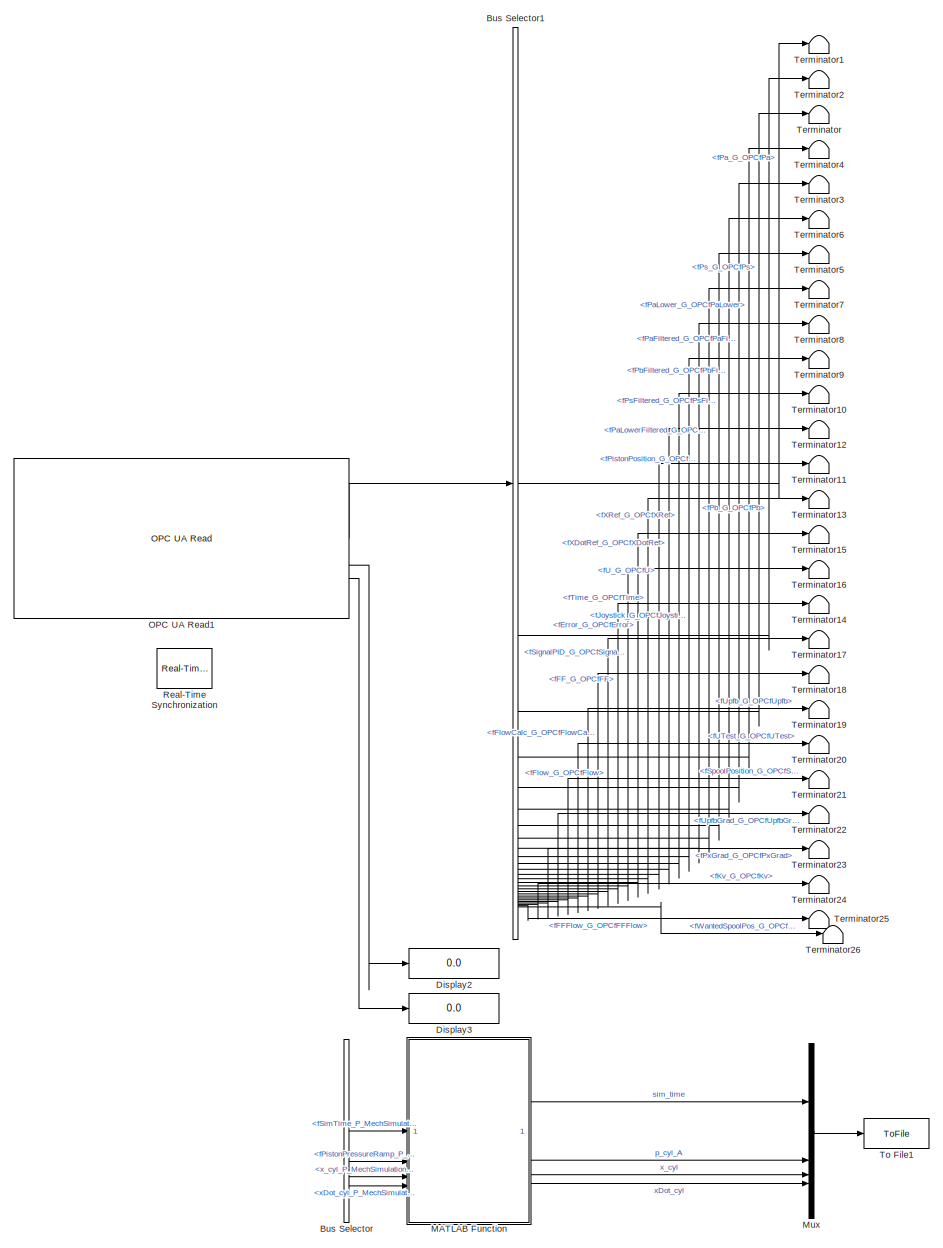
[diagram: root canvas - part 1/1, most of the canvas]
MODEL slx_031280645707
KIND model
CONFIG AbsTol = auto
CONFIG EnableMultiTasking = off
CONFIG FixedStep = 0.01
CONFIG MaxStep = 0.001
CONFIG MinStep = auto
CONFIG RelTol = 1e-3
CONFIG SampleTimeConstraint = Unconstrained
CONFIG SolverName = FixedStepDiscrete
CONFIG StartTime = 0.0
CONFIG StopTime = inf
BLOCK [BusSelector] Bus Selector
  Commented = on
  OutputSignals = fSimTime_P_MechSimulationfSimTime,fPistonPressureRamp_P_MechSimulationfPistonPressureRamp,x_cyl_P_MechSimulationx_cyl,xDot_cyl_P_MechSimulationxDot_cyl
BLOCK [BusSelector] Bus Selector1
  OutputSignals = fPa_G_OPCfPa,fPb_G_OPCfPb,fPs_G_OPCfPs,fPaLower_G_OPCfPaLower,fPaFiltered_G_OPCfPaFiltered,fPbFiltered_G_OPCfPbFiltered,fPsFiltered_G_OPCfPsFiltered,fPaLowerFiltered_G_OPCfPaLowerFiltered,fPistonPosition_G_OPCfPistonPosition,fJoystick_G_OPCfJoystick,fXRef_G_OPCfXRef,fXDotRef_G_OPCfXDotRef,fU_G_OPCfU,fTime_G_OPCfTime,fError_G_OPCfError,fSignalPID_G_OPCfSignalPID,fFF_G_OPCfFF,fFlow_G_OPCfFlow,fFlowC...<+206ch>
BLOCK [Display] Display2
  Decimation = 1
BLOCK [Display] Display3
  Decimation = 1
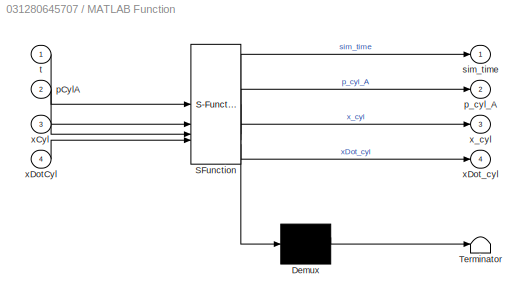
BLOCK [SubSystem] MATLAB Function
  Commented = on
  ErrorFcn = Stateflow.Translate.translate
  PermitHierarchicalResolution = ExplicitOnly
  SFBlockType = MATLAB Function
  TreatAsAtomicUnit = on
BLOCK [Demux] MATLAB Function/ Demux 
  Outputs = 1
BLOCK [S-Function] MATLAB Function/ SFunction 
  EnableBusSupport = on
  FunctionName = sf_sfun
  PortCounts = [4 5]
  SFcnIsStateOwnerBlock = off
  SFunctionDeploymentMode = off
  Tag = Stateflow S-Function 2
BLOCK [Terminator] MATLAB Function/ Terminator 
BLOCK [Inport] MATLAB Function/pCylA
  Port = 2
BLOCK [Outport] MATLAB Function/p_cyl_A
  Port = 2
BLOCK [Outport] MATLAB Function/sim_time
BLOCK [Inport] MATLAB Function/t
BLOCK [Inport] MATLAB Function/xCyl
  Port = 3
BLOCK [Inport] MATLAB Function/xDotCyl
  Port = 4
BLOCK [Outport] MATLAB Function/xDot_cyl
  Port = 4
BLOCK [Outport] MATLAB Function/x_cyl
  Port = 3
BLOCK [Mux] Mux
  Commented = on
  DisplayOption = bar
BLOCK [Reference] OPC UA Read1  REF=opcualib/OPC UA Read
  SourceBlock = opcualib/OPC UA Read
  SourceType = opcUARead
BLOCK [Reference] Real-Time Synchronization  REF=sldrtlib/Real-Time
Synchronization
  SourceBlock = sldrtlib/Real-Time\nSynchronization
  SourceType = Simulink Desktop Real-Time Synchronization
BLOCK [Terminator] Terminator
BLOCK [Terminator] Terminator1
BLOCK [Terminator] Terminator10
BLOCK [Terminator] Terminator11
BLOCK [Terminator] Terminator12
BLOCK [Terminator] Terminator13
BLOCK [Terminator] Terminator14
BLOCK [Terminator] Terminator15
BLOCK [Terminator] Terminator16
BLOCK [Terminator] Terminator17
BLOCK [Terminator] Terminator18
BLOCK [Terminator] Terminator19
BLOCK [Terminator] Terminator2
BLOCK [Terminator] Terminator20
BLOCK [Terminator] Terminator21
BLOCK [Terminator] Terminator22
BLOCK [Terminator] Terminator23
BLOCK [Terminator] Terminator24
BLOCK [Terminator] Terminator25
BLOCK [Terminator] Terminator26
BLOCK [Terminator] Terminator3
BLOCK [Terminator] Terminator4
BLOCK [Terminator] Terminator5
BLOCK [Terminator] Terminator6
BLOCK [Terminator] Terminator7
BLOCK [Terminator] Terminator8
BLOCK [Terminator] Terminator9
BLOCK [ToFile] To File1
  Commented = on
  Filename = MechData.mat
  SaveFormat = Timeseries
LINE Bus Selector1:1 -> Terminator1:1
LINE Bus Selector1:10 -> Terminator9:1
LINE Bus Selector1:11 -> Terminator10:1
LINE Bus Selector1:12 -> Terminator12:1
LINE Bus Selector1:13 -> Terminator11:1
LINE Bus Selector1:14 -> Terminator13:1
LINE Bus Selector1:15 -> Terminator15:1
LINE Bus Selector1:16 -> Terminator16:1
LINE Bus Selector1:17 -> Terminator14:1
LINE Bus Selector1:18 -> Terminator17:1
LINE Bus Selector1:19 -> Terminator18:1
LINE Bus Selector1:2 -> Terminator2:1
LINE Bus Selector1:20 -> Terminator19:1
LINE Bus Selector1:21 -> Terminator20:1
LINE Bus Selector1:22 -> Terminator21:1
LINE Bus Selector1:23 -> Terminator22:1
LINE Bus Selector1:24 -> Terminator23:1
LINE Bus Selector1:25 -> Terminator24:1
LINE Bus Selector1:26 -> Terminator25:1
LINE Bus Selector1:27 -> Terminator26:1
LINE Bus Selector1:3 -> Terminator:1
LINE Bus Selector1:4 -> Terminator4:1
LINE Bus Selector1:5 -> Terminator3:1
LINE Bus Selector1:6 -> Terminator6:1
LINE Bus Selector1:7 -> Terminator5:1
LINE Bus Selector1:8 -> Terminator7:1
LINE Bus Selector1:9 -> Terminator8:1
LINE Bus Selector:1 -> MATLAB Function:1
LINE Bus Selector:2 -> MATLAB Function:2
LINE Bus Selector:3 -> MATLAB Function:3
LINE Bus Selector:4 -> MATLAB Function:4
LINE MATLAB Function:1 -> Mux:1
LINE MATLAB Function:2 -> Mux:2
LINE MATLAB Function:3 -> Mux:3
LINE MATLAB Function:4 -> Mux:4
LINE Mux:1 -> To File1:1
LINE OPC UA Read1:1 -> Bus Selector1:1
LINE OPC UA Read1:2 -> Display2:1
LINE OPC UA Read1:3 -> Display3:1
CHART MATLAB Function states=1 transitions=1
  STATE_LABEL 'eML_blk_kernel()'
  STATE_LABEL 'SCRIPT:\nfunction [sim_time, p_cyl_A, x_cyl, xDot_cyl]   = fcn(t, pCylA, xCyl, xDotCyl)\nif t >= 0.0 && t < 10.0\n     sim_time = t;\n     p_cyl_A = pCylA;\n     x_cyl = xCyl;\n     xDot_cyl = xDotCyl;\nelseif t >= 10.0\n     sim_time = 10.0;\n     p_cyl_A = pCylA;\n     x_cyl = xCyl;\n     xDot_cyl = xDotCyl;\nelse\n     sim_time = 0.0;\n     p_cyl_A = 0.0;\n     x_cyl = 0.0;\n     xDot_cyl = 0.0;\nend'
CHART  states=0 transitions=0
